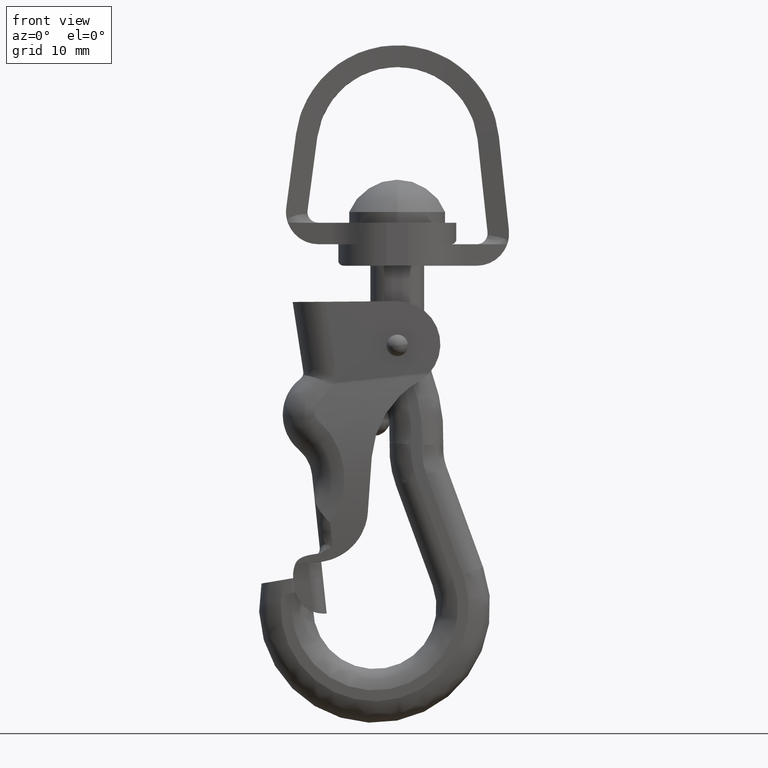
[diagram: clean part render]
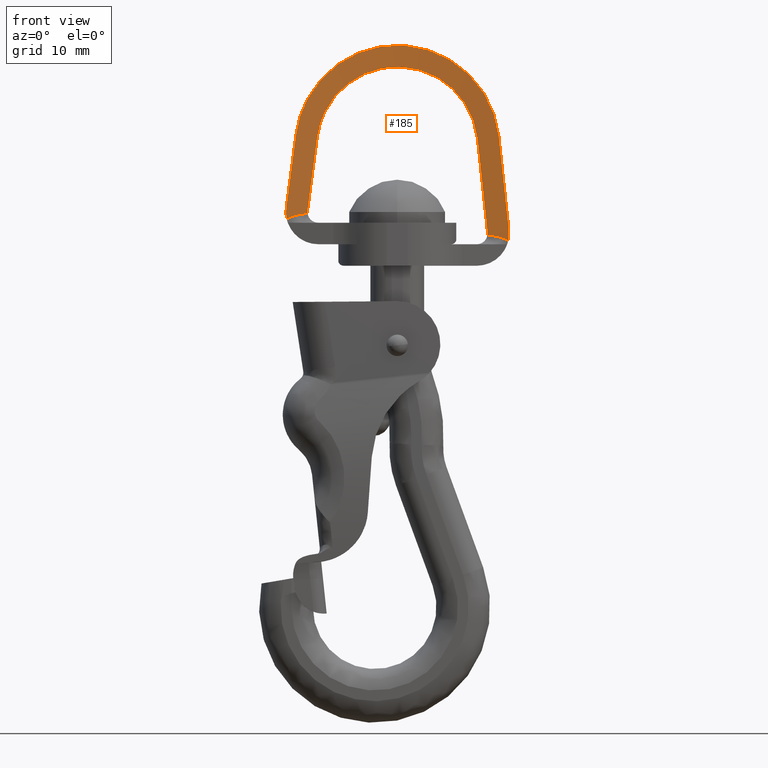
[diagram: same view with one face highlighted and labeled with its STEP entity id]
A machine part, front view. The second image highlights one B-rep face of the part: STEP entity #185.
In plain terms, the highlighted cylindrical surface (partial cylindrical patch) has radius 71.2536 mm, axis along (0, 0, 1).
Its self-contained STEP definition (entity closure, byte-faithful):
#185=ADVANCED_FACE('',(#713),#712,.F.);
#712=CYLINDRICAL_SURFACE('',#2681,7.12535530966E+01);
#713=FACE_OUTER_BOUND('',#2682,.T.);
#2678=CARTESIAN_POINT('',(-2.84217094304E-13,-7.36241627112E+01,3.40000000000E+01));
#2679=DIRECTION('',(-0.00000000000E+00,-0.00000000000E+00,1.00000000000E+00));
#2680=DIRECTION('',(1.00000000000E+00,-0.00000000000E+00,-0.00000000000E+00));
#2681=AXIS2_PLACEMENT_3D('',#2678,#2679,#2680);
#2682=EDGE_LOOP('',(#5747,#5748,#5749,#5750,#5751,#5752,#5753,#5754,#5755,#5756,#5757,#5758,#5759));
#5747=ORIENTED_EDGE('',*,*,#6741,.F.);
#5748=ORIENTED_EDGE('',*,*,#6694,.T.);
#5749=ORIENTED_EDGE('',*,*,#6661,.T.);
#5750=ORIENTED_EDGE('',*,*,#6742,.F.);
#5751=ORIENTED_EDGE('',*,*,#6691,.F.);
#5752=ORIENTED_EDGE('',*,*,#6688,.T.);
#5753=ORIENTED_EDGE('',*,*,#6704,.F.);
#5754=ORIENTED_EDGE('',*,*,#6677,.T.);
#5755=ORIENTED_EDGE('',*,*,#6692,.T.);
#5756=ORIENTED_EDGE('',*,*,#6670,.F.);
#5757=ORIENTED_EDGE('',*,*,#6697,.F.);
#5758=ORIENTED_EDGE('',*,*,#6681,.F.);
#5759=ORIENTED_EDGE('',*,*,#6683,.F.);
#6661=EDGE_CURVE('',#7410,#7411,#7412,.T.);
#6670=EDGE_CURVE('',#7465,#7472,#7473,.T.);
#6677=EDGE_CURVE('',#7520,#7513,#7521,.T.);
#6681=EDGE_CURVE('',#7540,#7533,#7547,.T.);
#6683=EDGE_CURVE('',#7553,#7540,#7560,.T.);
#6688=EDGE_CURVE('',#7593,#7586,#7594,.T.);
#6691=EDGE_CURVE('',#7593,#7606,#7613,.T.);
#6692=EDGE_CURVE('',#7513,#7472,#7619,.T.);
#6694=EDGE_CURVE('',#7631,#7410,#7632,.T.);
#6697=EDGE_CURVE('',#7533,#7465,#7651,.T.);
#6704=EDGE_CURVE('',#7520,#7586,#7697,.T.);
#6741=EDGE_CURVE('',#7631,#7553,#7937,.T.);
#6742=EDGE_CURVE('',#7606,#7411,#7943,.T.);
#7410=VERTEX_POINT('',#11054);
#7411=VERTEX_POINT('',#11055);
#7412=(BOUNDED_CURVE() B_SPLINE_CURVE(3,(#11056,#11057,#11058,#11059),.UNSPECIFIED.,.F.,.F.) B_SPLINE_CURVE_WITH_KNOTS((4,4),(3.26359857272E-04,6.66399822648E-04),.UNSPECIFIED.) CURVE() GEOMETRIC_REPRESENTATION_ITEM() RATIONAL_B_SPLINE_CURVE((1.00000000000E+00,1.00000000000E+00,1.00000000000E+00,1.00000000000E+00)) REPRESENTATION_ITEM('') );
#7465=VERTEX_POINT('',#11098);
#7472=VERTEX_POINT('',#11102);
#7473=(BOUNDED_CURVE() B_SPLINE_CURVE(3,(#11103,#11104,#11105,#11106),.UNSPECIFIED.,.F.,.F.) B_SPLINE_CURVE_WITH_KNOTS((4,4),(6.07153216592E-18,2.45661909507E-04),.UNSPECIFIED.) CURVE() GEOMETRIC_REPRESENTATION_ITEM() RATIONAL_B_SPLINE_CURVE((1.00000000000E+00,1.00000000000E+00,1.00000000000E+00,1.00000000000E+00)) REPRESENTATION_ITEM('') );
#7513=VERTEX_POINT('',#11136);
#7520=VERTEX_POINT('',#11141);
#7521=(BOUNDED_CURVE() B_SPLINE_CURVE(3,(#11142,#11143,#11144,#11145),.UNSPECIFIED.,.F.,.F.) B_SPLINE_CURVE_WITH_KNOTS((4,4),(9.54097911787E-18,1.05603795107E-03),.UNSPECIFIED.) CURVE() GEOMETRIC_REPRESENTATION_ITEM() RATIONAL_B_SPLINE_CURVE((1.00000000000E+00,1.00000000000E+00,1.00000000000E+00,1.00000000000E+00)) REPRESENTATION_ITEM('') );
#7533=VERTEX_POINT('',#11149);
#7540=VERTEX_POINT('',#11153);
#7547=(BOUNDED_CURVE() B_SPLINE_CURVE(3,(#11157,#11158,#11159,#11160,#11161,#11162,#11163,#11164,#11165,#11166,#11167,#11168,#11169,#11170,#11171,#11172,#11173,#11174,#11175,#11176,#11177,#11178,#11179,#11180,#11181,#11182,#11183,#11184,#11185,#11186,#11187,#11188,#11189,#11190,#11191,#11192,#11193,#11194),.UNSPECIFIED.,.F.,.F.) B_SPLINE_CURVE_WITH_KNOTS((4,2,2,2,2,2,2,2,2,2,2,2,2,2,2,2,2,2,4),(0.00000000000E+00,1.35495995066E-03,2.03243992599E-03,2.70991990132E-03,4.06487985198E-03,4.74235982731E-03,5.41983980264E-03,6.77479975330E-03,8.12975970396E-03,9.48471965462E-03,1.08396796053E-02,1.35495995066E-02,1.49045594573E-02,1.62595194079E-02,1.76144793586E-02,1.89694393092E-02,1.96469192846E-02,2.03243992599E-02,2.16793592106E-02),.UNSPECIFIED.) CURVE() GEOMETRIC_REPRESENTATION_ITEM() RATIONAL_B_SPLINE_CURVE((1.00000000000E+00,1.00000000000E+00,1.00000000000E+00,1.00000000000E+00,1.00000000000E+00,1.00000000000E+00,1.00000000000E+00,1.00000000000E+00,1.00000000000E+00,1.00000000000E+00,1.00000000000E+00,1.00000000000E+00,1.00000000000E+00,1.00000000000E+00,1.00000000000E+00,1.00000000000E+00,1.00000000000E+00,1.00000000000E+00,1.00000000000E+00,1.00000000000E+00,1.00000000000E+00,1.00000000000E+00,1.00000000000E+00,1.00000000000E+00,1.00000000000E+00,1.00000000000E+00,1.00000000000E+00,1.00000000000E+00,1.00000000000E+00,1.00000000000E+00,1.00000000000E+00,1.00000000000E+00,1.00000000000E+00,1.00000000000E+00,1.00000000000E+00,1.00000000000E+00,1.00000000000E+00,1.00000000000E+00)) REPRESENTATION_ITEM('') );
#7553=VERTEX_POINT('',#11195);
#7560=(BOUNDED_CURVE() B_SPLINE_CURVE(2,(#11199,#11200,#11201),.UNSPECIFIED.,.F.,.F.) B_SPLINE_CURVE_WITH_KNOTS((3,3),(-4.83039774803E+00,-4.81723939146E+00),.UNSPECIFIED.) CURVE() GEOMETRIC_REPRESENTATION_ITEM() RATIONAL_B_SPLINE_CURVE((1.00000000000E+00,9.99978357285E-01,1.00000000000E+00)) REPRESENTATION_ITEM('') );
#7586=VERTEX_POINT('',#11213);
#7593=VERTEX_POINT('',#11217);
#7594=(BOUNDED_CURVE() B_SPLINE_CURVE(3,(#11218,#11219,#11220,#11221,#11222,#11223,#11224,#11225,#11226,#11227,#11228,#11229,#11230,#11231,#11232,#11233,#11234,#11235,#11236,#11237,#11238,#11239,#11240,#11241,#11242,#11243,#11244,#11245,#11246,#11247,#11248,#11249,#11250,#11251,#11252,#11253,#11254,#11255,#11256,#11257,#11258,#11259,#11260,#11261),.UNSPECIFIED.,.F.,.F.) B_SPLINE_CURVE_WITH_KNOTS((4,2,2,2,2,2,2,2,2,2,2,2,2,2,2,2,2,2,2,2,2,4),(3.87895961445E-18,1.71469677414E-03,2.57204516121E-03,3.42939354828E-03,5.14409032241E-03,6.00143870948E-03,6.85878709655E-03,7.71613548362E-03,8.57348387069E-03,1.02881806448E-02,1.20028774190E-02,1.37175741931E-02,1.54322709672E-02,1.71469677414E-02,1.88616645155E-02,1.97190129026E-02,2.05763612897E-02,2.22910580638E-02,2.31484064509E-02,2.40057548379E-02,2.57204516121E-02,2.74351483862E-02),.UNSPECIFIED.) CURVE() GEOMETRIC_REPRESENTATION_ITEM() RATIONAL_B_SPLINE_CURVE((1.00000000000E+00,1.00000000000E+00,1.00000000000E+00,1.00000000000E+00,1.00000000000E+00,1.00000000000E+00,1.00000000000E+00,1.00000000000E+00,1.00000000000E+00,1.00000000000E+00,1.00000000000E+00,1.00000000000E+00,1.00000000000E+00,1.00000000000E+00,1.00000000000E+00,1.00000000000E+00,1.00000000000E+00,1.00000000000E+00,1.00000000000E+00,1.00000000000E+00,1.00000000000E+00,1.00000000000E+00,1.00000000000E+00,1.00000000000E+00,1.00000000000E+00,1.00000000000E+00,1.00000000000E+00,1.00000000000E+00,1.00000000000E+00,1.00000000000E+00,1.00000000000E+00,1.00000000000E+00,1.00000000000E+00,1.00000000000E+00,1.00000000000E+00,1.00000000000E+00,1.00000000000E+00,1.00000000000E+00,1.00000000000E+00,1.00000000000E+00,1.00000000000E+00,1.00000000000E+00,1.00000000000E+00,1.00000000000E+00)) REPRESENTATION_ITEM('') );
#7606=VERTEX_POINT('',#11265);
#7613=(BOUNDED_CURVE() B_SPLINE_CURVE(2,(#11269,#11270,#11271),.UNSPECIFIED.,.F.,.F.) B_SPLINE_CURVE_WITH_KNOTS((3,3),(-1.43783762193E+00,-1.42468286525E+00),.UNSPECIFIED.) CURVE() GEOMETRIC_REPRESENTATION_ITEM() RATIONAL_B_SPLINE_CURVE((1.00000000000E+00,9.99978369125E-01,1.00000000000E+00)) REPRESENTATION_ITEM('') );
#7619=(BOUNDED_CURVE() B_SPLINE_CURVE(3,(#11272,#11273,#11274,#11275,#11276,#11277,#11278,#11279),.UNSPECIFIED.,.F.,.F.) B_SPLINE_CURVE_WITH_KNOTS((4,2,2,4),(0.00000000000E+00,5.16598079111E-04,1.03319615822E-03,2.06639231644E-03),.UNSPECIFIED.) CURVE() GEOMETRIC_REPRESENTATION_ITEM() RATIONAL_B_SPLINE_CURVE((1.00000000000E+00,1.00000000000E+00,1.00000000000E+00,1.00000000000E+00,1.00000000000E+00,1.00000000000E+00,1.00000000000E+00,1.00000000000E+00)) REPRESENTATION_ITEM('') );
#7631=VERTEX_POINT('',#11283);
#7632=(BOUNDED_CURVE() B_SPLINE_CURVE(3,(#11284,#11285,#11286,#11287,#11288,#11289,#11290,#11291,#11292,#11293),.UNSPECIFIED.,.F.,.F.) B_SPLINE_CURVE_WITH_KNOTS((4,2,2,2,4),(0.00000000000E+00,1.02209425704E-03,1.53314138557E-03,1.78866494983E-03,2.04418851409E-03),.UNSPECIFIED.) CURVE() GEOMETRIC_REPRESENTATION_ITEM() RATIONAL_B_SPLINE_CURVE((1.00000000000E+00,1.00000000000E+00,1.00000000000E+00,1.00000000000E+00,1.00000000000E+00,1.00000000000E+00,1.00000000000E+00,1.00000000000E+00,1.00000000000E+00,1.00000000000E+00)) REPRESENTATION_ITEM('') );
#7651=(BOUNDED_CURVE() B_SPLINE_CURVE(2,(#11310,#11311,#11312),.UNSPECIFIED.,.F.,.F.) B_SPLINE_CURVE_WITH_KNOTS((3,3),(-1.46626339721E+00,-1.45341329074E+00),.UNSPECIFIED.) CURVE() GEOMETRIC_REPRESENTATION_ITEM() RATIONAL_B_SPLINE_CURVE((1.00000000000E+00,9.99979359416E-01,1.00000000000E+00)) REPRESENTATION_ITEM('') );
#7697=(BOUNDED_CURVE() B_SPLINE_CURVE(2,(#11338,#11339,#11340),.UNSPECIFIED.,.F.,.F.) B_SPLINE_CURVE_WITH_KNOTS((3,3),(-4.85783965993E+00,-4.84494419340E+00),.UNSPECIFIED.) CURVE() GEOMETRIC_REPRESENTATION_ITEM() RATIONAL_B_SPLINE_CURVE((1.00000000000E+00,9.99979213440E-01,1.00000000000E+00)) REPRESENTATION_ITEM('') );
#7937=(BOUNDED_CURVE() B_SPLINE_CURVE(3,(#11489,#11490,#11491,#11492),.UNSPECIFIED.,.F.,.F.) B_SPLINE_CURVE_WITH_KNOTS((4,4),(1.44875630190E-03,1.67414107197E-03),.UNSPECIFIED.) CURVE() GEOMETRIC_REPRESENTATION_ITEM() RATIONAL_B_SPLINE_CURVE((1.00000000000E+00,1.00000000000E+00,1.00000000000E+00,1.00000000000E+00)) REPRESENTATION_ITEM('') );
#7943=LINE('',#11493,#11494);
#11054=CARTESIAN_POINT('',(1.03151129731E+01,-3.12120338857E+00,2.31341187507E+00));
#11055=CARTESIAN_POINT('',(1.03740981237E+01,-3.12985856527E+00,2.64870759482E+00));
#11056=CARTESIAN_POINT('',(1.03151129731E+01,-3.12120338857E+00,2.31341187507E+00));
#11057=CARTESIAN_POINT('',(1.03410393362E+01,-3.12499661039E+00,2.42368866137E+00));
#11058=CARTESIAN_POINT('',(1.03607433297E+01,-3.12789324418E+00,2.53544367145E+00));
#11059=CARTESIAN_POINT('',(1.03740981237E+01,-3.12985856527E+00,2.64870759482E+00));
#11098=CARTESIAN_POINT('',(-8.34476410110E+00,-2.86093962890E+00,5.13158647322E+00));
#11102=CARTESIAN_POINT('',(-8.34690435008E+00,-2.86119205091E+00,4.88568840150E+00));
#11103=CARTESIAN_POINT('',(-8.34476410110E+00,-2.86093962890E+00,5.13158647322E+00));
#11104=CARTESIAN_POINT('',(-8.35569341525E+00,-2.86222846998E+00,5.04925065126E+00));
#11105=CARTESIAN_POINT('',(-8.35629376092E+00,-2.86229958659E+00,4.96728871901E+00));
#11106=CARTESIAN_POINT('',(-8.34690435008E+00,-2.86119205091E+00,4.88568840150E+00));
#11136=CARTESIAN_POINT('',(-1.02799357689E+01,-3.11606566210E+00,4.33989690746E+00));
#11141=CARTESIAN_POINT('',(-1.03273734929E+01,-3.12299828368E+00,5.39475941967E+00));
#11142=CARTESIAN_POINT('',(-1.03273734929E+01,-3.12299828368E+00,5.39475941967E+00));
#11143=CARTESIAN_POINT('',(-1.03743529834E+01,-3.12988008130E+00,5.04084014158E+00));
#11144=CARTESIAN_POINT('',(-1.03583738221E+01,-3.12750176920E+00,4.68764123915E+00));
#11145=CARTESIAN_POINT('',(-1.02799357689E+01,-3.11606566210E+00,4.33989690746E+00));
#11149=CARTESIAN_POINT('',(-7.43478521907E+00,-2.75955378937E+00,1.19868985492E+01));
#11153=CARTESIAN_POINT('',(7.45728304523E+00,-2.76191776736E+00,1.17993307096E+01));
#11157=CARTESIAN_POINT('',(7.45728304523E+00,-2.76191776736E+00,1.17993307096E+01));
#11158=CARTESIAN_POINT('',(7.40845380941E+00,-2.75677915747E+00,1.22548786174E+01));
#11159=CARTESIAN_POINT('',(7.31900277230E+00,-2.74738466909E+00,1.26988393346E+01));
#11160=CARTESIAN_POINT('',(7.12650614952E+00,-2.72785886835E+00,1.33481640205E+01));
#11161=CARTESIAN_POINT('',(7.05255773400E+00,-2.72044375030E+00,1.35618184155E+01));
#11162=CARTESIAN_POINT('',(6.88479327444E+00,-2.70395716549E+00,1.39834720970E+01));
#11163=CARTESIAN_POINT('',(6.79040491330E+00,-2.69483191455E+00,1.41925410922E+01));
#11164=CARTESIAN_POINT('',(6.48091489389E+00,-2.66565708973E+00,1.48020273782E+01));
#11165=CARTESIAN_POINT('',(6.24081631538E+00,-2.64391239499E+00,1.51838941770E+01));
#11166=CARTESIAN_POINT('',(5.83175635231E+00,-2.60952921690E+00,1.57213671261E+01));
#11167=CARTESIAN_POINT('',(5.68719930406E+00,-2.59777239992E+00,1.58945995802E+01));
#11168=CARTESIAN_POINT('',(5.38135135397E+00,-2.57394515925E+00,1.62289959437E+01));
#11169=CARTESIAN_POINT('',(5.21914244985E+00,-2.56181065410E+00,1.63909590334E+01));
#11170=CARTESIAN_POINT('',(4.71396786964E+00,-2.52591145686E+00,1.68511584981E+01));
#11171=CARTESIAN_POINT('',(4.35376815062E+00,-2.50271231550E+00,1.71236068904E+01));
#11172=CARTESIAN_POINT('',(3.58769360316E+00,-2.45995500741E+00,1.76016901675E+01));
#11173=CARTESIAN_POINT('',(3.17901394494E+00,-2.44028775782E+00,1.78083157291E+01));
#11174=CARTESIAN_POINT('',(2.32793621704E+00,-2.40737469033E+00,1.81442288386E+01));
#11175=CARTESIAN_POINT('',(1.88982168703E+00,-2.39429618731E+00,1.82720399235E+01));
#11176=CARTESIAN_POINT('',(1.00347834186E+00,-2.37629718361E+00,1.84462757051E+01));
#11177=CARTESIAN_POINT('',(5.53128517878E-01,-2.37128565301E+00,1.84935768257E+01));
#11178=CARTESIAN_POINT('',(-8.20370147000E-01,-2.36944871252E+00,1.85110300239E+01));
#11179=CARTESIAN_POINT('',(-1.71227233840E+00,-2.38599447699E+00,1.83590251023E+01));
#11180=CARTESIAN_POINT('',(-3.00148501161E+00,-2.43255624049E+00,1.78884228586E+01));
#11181=CARTESIAN_POINT('',(-3.41044205051E+00,-2.45120783682E+00,1.76949609228E+01));
#11182=CARTESIAN_POINT('',(-4.18854237214E+00,-2.49275802012E+00,1.72377663899E+01));
#11183=CARTESIAN_POINT('',(-4.55937534449E+00,-2.51578709601E+00,1.69725266380E+01));
#11184=CARTESIAN_POINT('',(-5.25100479333E+00,-2.56351301798E+00,1.63745629250E+01));
#11185=CARTESIAN_POINT('',(-5.56825748141E+00,-2.58794905974E+00,1.60446297182E+01));
#11186=CARTESIAN_POINT('',(-6.13313245886E+00,-2.63448862012E+00,1.53403302426E+01));
#11187=CARTESIAN_POINT('',(-6.38306357807E+00,-2.65675743522E+00,1.49641139139E+01));
#11188=CARTESIAN_POINT('',(-6.70783253209E+00,-2.68696772538E+00,1.43625745587E+01));
#11189=CARTESIAN_POINT('',(-6.80745240962E+00,-2.69648512644E+00,1.41559600122E+01));
#11190=CARTESIAN_POINT('',(-6.98579791597E+00,-2.71382860288E+00,1.37386345841E+01));
#11191=CARTESIAN_POINT('',(-7.06510764103E+00,-2.72170876305E+00,1.35268995158E+01));
#11192=CARTESIAN_POINT('',(-7.27390190397E+00,-2.74272119231E+00,1.28826098005E+01));
#11193=CARTESIAN_POINT('',(-7.37450112080E+00,-2.75322906212E+00,1.24410478871E+01));
#11194=CARTESIAN_POINT('',(-7.43478521907E+00,-2.75955378937E+00,1.19868985492E+01));
#11195=CARTESIAN_POINT('',(8.38904124814E+00,-2.86617506433E+00,3.10657742794E+00));
#11199=CARTESIAN_POINT('',(8.38904124814E+00,-2.86617506433E+00,3.10657742794E+00));
#11200=CARTESIAN_POINT('',(7.92350511531E+00,-2.81098126995E+00,7.44975437425E+00));
#11201=CARTESIAN_POINT('',(7.45728304523E+00,-2.76191776736E+00,1.17993307096E+01));
#11213=CARTESIAN_POINT('',(-9.41739461082E+00,-2.99568752136E+00,1.22500714956E+01));
#11217=CARTESIAN_POINT('',(9.44589185730E+00,-2.99949311255E+00,1.20124855655E+01));
#11218=CARTESIAN_POINT('',(9.44589185730E+00,-2.99949311255E+00,1.20124855655E+01));
#11219=CARTESIAN_POINT('',(9.38409854350E+00,-2.99122839481E+00,1.25889806579E+01));
#11220=CARTESIAN_POINT('',(9.27095451925E+00,-2.97612667339E+00,1.31507462550E+01));
#11221=CARTESIAN_POINT('',(9.02756864112E+00,-2.94475606027E+00,1.39723023429E+01));
#11222=CARTESIAN_POINT('',(8.93408219273E+00,-2.93284484272E+00,1.42426165119E+01));
#11223=CARTESIAN_POINT('',(8.72202139631E+00,-2.90636728904E+00,1.47760732557E+01));
#11224=CARTESIAN_POINT('',(8.60275051337E+00,-2.89171778570E+00,1.50405191810E+01));
#11225=CARTESIAN_POINT('',(8.21149810901E+00,-2.84486391381E+00,1.58118338910E+01));
#11226=CARTESIAN_POINT('',(7.90770131654E+00,-2.80991372364E+00,1.62956772610E+01));
#11227=CARTESIAN_POINT('',(7.38936379228E+00,-2.75459008398E+00,1.69773562037E+01));
#11228=CARTESIAN_POINT('',(7.20607851535E+00,-2.73566377878E+00,1.71971886619E+01));
#11229=CARTESIAN_POINT('',(6.81799932357E+00,-2.69728674951E+00,1.76217520419E+01));
#11230=CARTESIAN_POINT('',(6.61271411788E+00,-2.67779902051E+00,1.78267835879E+01));
#11231=CARTESIAN_POINT('',(6.18698403539E+00,-2.63940563278E+00,1.82148590220E+01));
#11232=CARTESIAN_POINT('',(5.96582018205E+00,-2.62042468494E+00,1.83987738524E+01));
#11233=CARTESIAN_POINT('',(5.50690070120E+00,-2.58335845890E+00,1.87464126943E+01));
#11234=CARTESIAN_POINT('',(5.26822816113E+00,-2.56520944301E+00,1.89106874300E+01));
#11235=CARTESIAN_POINT('',(4.53375349421E+00,-2.51329952790E+00,1.93682670574E+01));
#11236=CARTESIAN_POINT('',(4.02229798037E+00,-2.48222999430E+00,1.96255066078E+01));
#11237=CARTESIAN_POINT('',(2.95653966126E+00,-2.42997513264E+00,2.00463870421E+01));
#11238=CARTESIAN_POINT('',(2.39671032461E+00,-2.40870176686E+00,2.02105975586E+01));
#11239=CARTESIAN_POINT('',(1.27055067206E+00,-2.37971170704E+00,2.04321274778E+01));
#11240=CARTESIAN_POINT('',(7.02085591931E-01,-2.37175772018E+00,2.04913880465E+01));
#11241=CARTESIAN_POINT('',(-4.45627296532E-01,-2.36969227253E+00,2.05068810627E+01));
#11242=CARTESIAN_POINT('',(-1.02735296259E+00,-2.37574774154E+00,2.04618722182E+01));
#11243=CARTESIAN_POINT('',(-2.16418850758E+00,-2.40121431743E+00,2.02681588294E+01));
#11244=CARTESIAN_POINT('',(-2.72749777531E+00,-2.42078773429E+00,2.01181194886E+01));
#11245=CARTESIAN_POINT('',(-3.80529504757E+00,-2.47024797829E+00,1.97234784761E+01));
#11246=CARTESIAN_POINT('',(-4.32265324731E+00,-2.50011348858E+00,1.94791235117E+01));
#11247=CARTESIAN_POINT('',(-5.06625253365E+00,-2.55051334543E+00,1.90415049537E+01));
#11248=CARTESIAN_POINT('',(-5.30957035138E+00,-2.56832465016E+00,1.88829621817E+01));
#11249=CARTESIAN_POINT('',(-5.77647142118E+00,-2.60475664643E+00,1.85475166773E+01));
#11250=CARTESIAN_POINT('',(-6.00097106505E+00,-2.62342973391E+00,1.83701941571E+01));
#11251=CARTESIAN_POINT('',(-6.64824193448E+00,-2.68011898212E+00,1.78100324324E+01));
#11252=CARTESIAN_POINT('',(-7.04500377367E+00,-2.71881371245E+00,1.73992355023E+01));
#11253=CARTESIAN_POINT('',(-7.58654822104E+00,-2.77540791294E+00,1.67251514728E+01));
#11254=CARTESIAN_POINT('',(-7.75744970893E+00,-2.79396971071E+00,1.64912806464E+01));
#11255=CARTESIAN_POINT('',(-8.07445834404E+00,-2.82940733396E+00,1.60135128976E+01));
#11256=CARTESIAN_POINT('',(-8.22146806432E+00,-2.84637694139E+00,1.57685298285E+01));
#11257=CARTESIAN_POINT('',(-8.62851762004E+00,-2.89445057104E+00,1.50155123102E+01));
#11258=CARTESIAN_POINT('',(-8.85492762900E+00,-2.92273613434E+00,1.44893938786E+01));
#11259=CARTESIAN_POINT('',(-9.21331185388E+00,-2.96854476046E+00,1.33875714938E+01));
#11260=CARTESIAN_POINT('',(-9.34110678463E+00,-2.98551552541E+00,1.28247846746E+01));
#11261=CARTESIAN_POINT('',(-9.41739461082E+00,-2.99568752136E+00,1.22500714956E+01));
#11265=CARTESIAN_POINT('',(1.03740981237E+01,-3.12985856527E+00,3.35286975217E+00));
#11269=CARTESIAN_POINT('',(9.44589185730E+00,-2.99949311255E+00,1.20124855655E+01));
#11270=CARTESIAN_POINT('',(9.91042372812E+00,-3.06162321300E+00,7.67867779010E+00));
#11271=CARTESIAN_POINT('',(1.03740981237E+01,-3.12985856527E+00,3.35286975217E+00));
#11272=CARTESIAN_POINT('',(-1.02799357689E+01,-3.11606566210E+00,4.33989690746E+00));
#11273=CARTESIAN_POINT('',(-1.01410827422E+01,-3.09582117593E+00,4.43978432469E+00));
#11274=CARTESIAN_POINT('',(-9.98594153905E+00,-3.07364758448E+00,4.50764571423E+00));
#11275=CARTESIAN_POINT('',(-9.67033906961E+00,-3.02969582218E+00,4.62423836186E+00));
#11276=CARTESIAN_POINT('',(-9.50723724664E+00,-3.00753157596E+00,4.67103466116E+00));
#11277=CARTESIAN_POINT('',(-9.01561944847E+00,-2.94250504045E+00,4.79100105765E+00));
#11278=CARTESIAN_POINT('',(-8.68262286283E+00,-2.90079200395E+00,4.84473045176E+00));
#11279=CARTESIAN_POINT('',(-8.34690435008E+00,-2.86119205091E+00,4.88568840150E+00));
#11283=CARTESIAN_POINT('',(8.38758952302E+00,-2.86600296343E+00,2.88065363851E+00));
#11284=CARTESIAN_POINT('',(8.38758952302E+00,-2.86600296343E+00,2.88065363851E+00));
#11285=CARTESIAN_POINT('',(8.72344435354E+00,-2.90581480234E+00,2.83850020449E+00));
#11286=CARTESIAN_POINT('',(9.05759969602E+00,-2.94787266939E+00,2.78317036331E+00));
#11287=CARTESIAN_POINT('',(9.54909158198E+00,-3.01317919437E+00,2.65936930236E+00));
#11288=CARTESIAN_POINT('',(9.71126813749E+00,-3.03531457108E+00,2.61132264290E+00));
#11289=CARTESIAN_POINT('',(9.94793927755E+00,-3.06841398404E+00,2.52009795043E+00));
#11290=CARTESIAN_POINT('',(1.00253673167E+01,-3.07937856227E+00,2.48658042992E+00));
#11291=CARTESIAN_POINT('',(1.01752524656E+01,-3.10084176192E+00,2.40959353341E+00));
#11292=CARTESIAN_POINT('',(1.02483698936E+01,-3.11143837427E+00,2.36609032277E+00));
#11293=CARTESIAN_POINT('',(1.03151129731E+01,-3.12120338857E+00,2.31341187507E+00));
#11310=CARTESIAN_POINT('',(-7.43478521907E+00,-2.75955378937E+00,1.19868985492E+01));
#11311=CARTESIAN_POINT('',(-7.89010036927E+00,-2.80732333753E+00,8.55678878596E+00));
#11312=CARTESIAN_POINT('',(-8.34476410110E+00,-2.86093962890E+00,5.13158647322E+00));
#11338=CARTESIAN_POINT('',(-1.03273734929E+01,-3.12299828368E+00,5.39475941967E+00));
#11339=CARTESIAN_POINT('',(-9.87279449044E+00,-3.05640921131E+00,8.81932342464E+00));
#11340=CARTESIAN_POINT('',(-9.41739461082E+00,-2.99568752136E+00,1.22500714956E+01));
#11489=CARTESIAN_POINT('',(8.38758952302E+00,-2.86600296343E+00,2.88065363851E+00));
#11490=CARTESIAN_POINT('',(8.39658565566E+00,-2.86706935447E+00,2.95549324232E+00));
#11491=CARTESIAN_POINT('',(8.39716410556E+00,-2.86713810735E+00,3.03079596949E+00));
#11492=CARTESIAN_POINT('',(8.38904124814E+00,-2.86617506433E+00,3.10657742794E+00));
#11493=CARTESIAN_POINT('',(1.03740981237E+01,-3.12985856527E+00,3.35286975217E+00));
#11494=VECTOR('',#11495,7.04162157349E-01);
#11495=DIRECTION('',(0.00000000000E+00,0.00000000000E+00,-1.00000000000E+00));